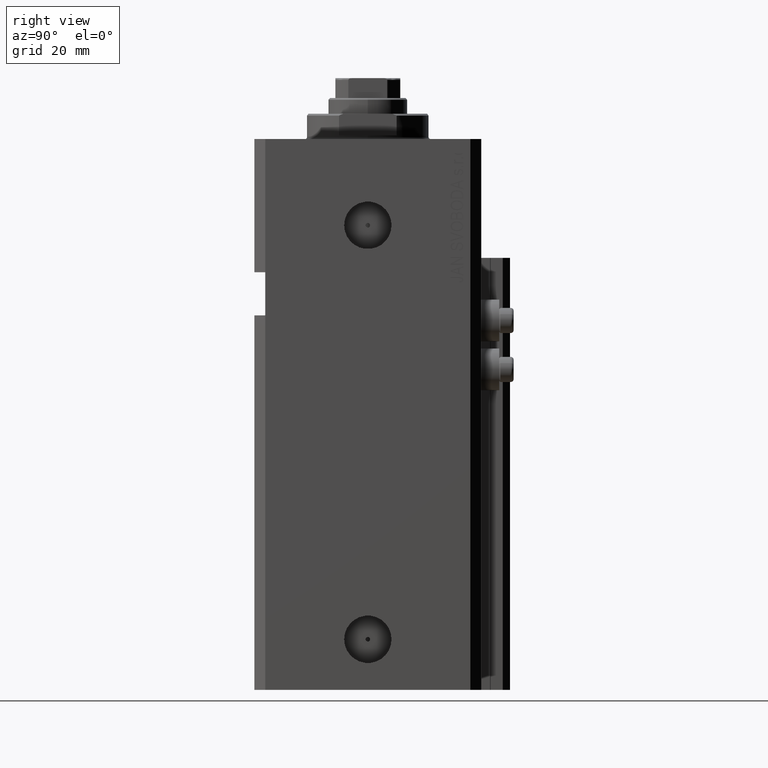
[diagram: clean part render]
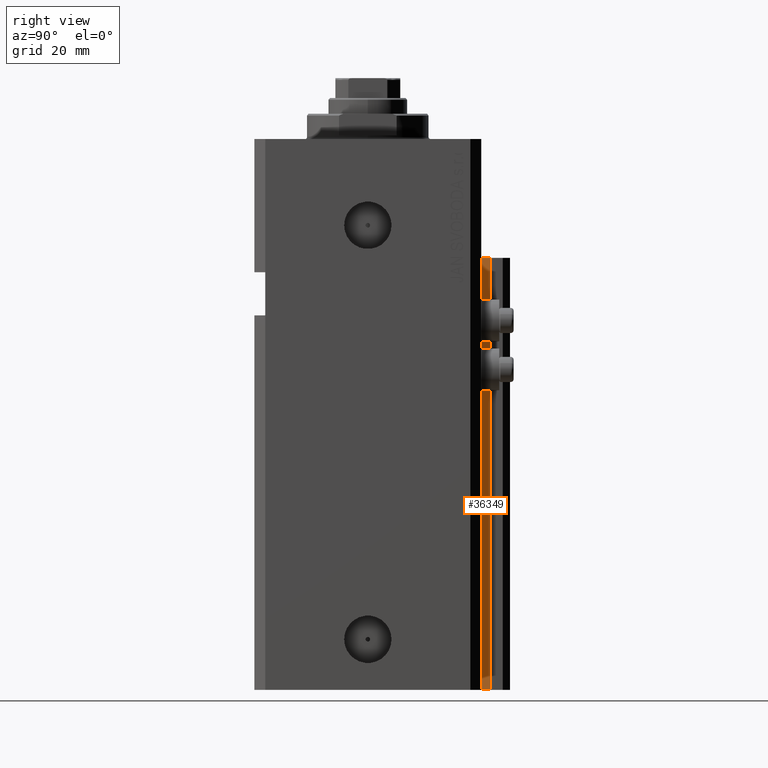
[diagram: same view with one face highlighted and labeled with its STEP entity id]
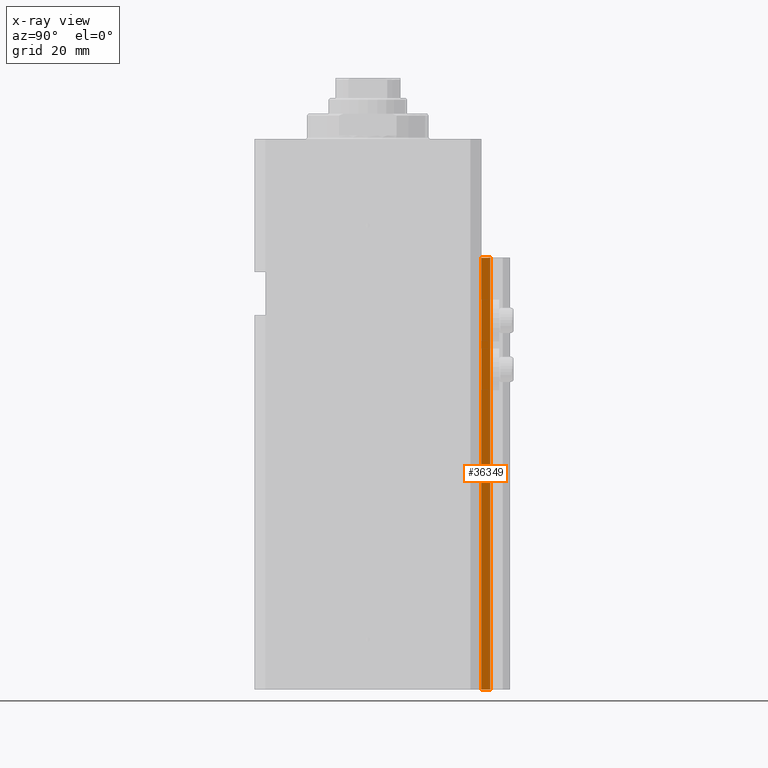
[diagram: x-ray of the same camera — body ghosted, the highlighted face saturated]
A machine part, right view. The second image highlights one B-rep face of the part: STEP entity #36349.
The next image is the same camera in x-ray: the body ghosted, the highlighted face saturated — about 0% of this face is hidden behind the body in this view.
In plain terms, the highlighted planar face has unit normal (1, 0, 0).
Its self-contained STEP definition (entity closure, byte-faithful):
#797 = ORIENTED_EDGE ( 'NONE', *, *, #3834, .T. ) ;
#2941 = CARTESIAN_POINT ( 'NONE',  ( 14.49999999999999645, 34.00000000000001421, -153.0000000000000000 ) ) ;
#3067 = LINE ( 'NONE', #37339, #44158 ) ;
#3834 = EDGE_CURVE ( 'NONE', #23429, #10218, #15900, .T. ) ;
#5776 = EDGE_CURVE ( 'NONE', #10796, #10218, #24581, .T. ) ;
#5780 = ORIENTED_EDGE ( 'NONE', *, *, #25156, .F. ) ;
#6425 = VECTOR ( 'NONE', #35286, 1000.000000000000000 ) ;
#7317 = ORIENTED_EDGE ( 'NONE', *, *, #37260, .T. ) ;
#8911 = DIRECTION ( 'NONE',  ( 1.000000000000000000, 0.000000000000000000, 0.000000000000000000 ) ) ;
#10218 = VERTEX_POINT ( 'NONE', #11071 ) ;
#10796 = VERTEX_POINT ( 'NONE', #12957 ) ;
#11071 = CARTESIAN_POINT ( 'NONE',  ( 14.49999999999999645, 34.00000000000001421, -33.00000000000000000 ) ) ;
#12805 = FACE_OUTER_BOUND ( 'NONE', #32861, .T. ) ;
#12957 = CARTESIAN_POINT ( 'NONE',  ( 14.49999999999999645, 31.50000000000000000, -33.00000000000000000 ) ) ;
#15658 = CARTESIAN_POINT ( 'NONE',  ( 14.49999999999999645, 34.00000000000001421, -153.0000000000000000 ) ) ;
#15900 = LINE ( 'NONE', #15658, #38241 ) ;
#15981 = PLANE ( 'NONE',  #23097 ) ;
#16434 = CARTESIAN_POINT ( 'NONE',  ( 14.49999999999999645, 31.50000000000000000, -153.0000000000000000 ) ) ;
#16883 = VECTOR ( 'NONE', #42331, 1000.000000000000000 ) ;
#20190 = LINE ( 'NONE', #45014, #16883 ) ;
#23097 = AXIS2_PLACEMENT_3D ( 'NONE', #38354, #8911, #45905 ) ;
#23429 = VERTEX_POINT ( 'NONE', #2941 ) ;
#24104 = DIRECTION ( 'NONE',  ( 0.000000000000000000, 0.000000000000000000, 1.000000000000000000 ) ) ;
#24581 = LINE ( 'NONE', #28222, #6425 ) ;
#25156 = EDGE_CURVE ( 'NONE', #28279, #10796, #3067, .T. ) ;
#28222 = CARTESIAN_POINT ( 'NONE',  ( 14.49999999999999645, 31.50000000000000000, -33.00000000000000000 ) ) ;
#28279 = VERTEX_POINT ( 'NONE', #16434 ) ;
#32861 = EDGE_LOOP ( 'NONE', ( #33833, #5780, #7317, #797 ) ) ;
#33682 = DIRECTION ( 'NONE',  ( 0.000000000000000000, 0.000000000000000000, 1.000000000000000000 ) ) ;
#33833 = ORIENTED_EDGE ( 'NONE', *, *, #5776, .F. ) ;
#35286 = DIRECTION ( 'NONE',  ( 0.000000000000000000, 1.000000000000000000, 0.000000000000000000 ) ) ;
#36349 = ADVANCED_FACE ( 'NONE', ( #12805 ), #15981, .T. ) ;
#37260 = EDGE_CURVE ( 'NONE', #28279, #23429, #20190, .T. ) ;
#37339 = CARTESIAN_POINT ( 'NONE',  ( 14.49999999999999645, 31.50000000000000000, -153.0000000000000000 ) ) ;
#38241 = VECTOR ( 'NONE', #24104, 1000.000000000000000 ) ;
#38354 = CARTESIAN_POINT ( 'NONE',  ( 14.49999999999999645, 31.50000000000000000, -153.0000000000000000 ) ) ;
#42331 = DIRECTION ( 'NONE',  ( 0.000000000000000000, 1.000000000000000000, 0.000000000000000000 ) ) ;
#44158 = VECTOR ( 'NONE', #33682, 1000.000000000000000 ) ;
#45014 = CARTESIAN_POINT ( 'NONE',  ( 14.49999999999999645, 31.50000000000000000, -153.0000000000000000 ) ) ;
#45905 = DIRECTION ( 'NONE',  ( 0.000000000000000000, 0.000000000000000000, -1.000000000000000000 ) ) ;